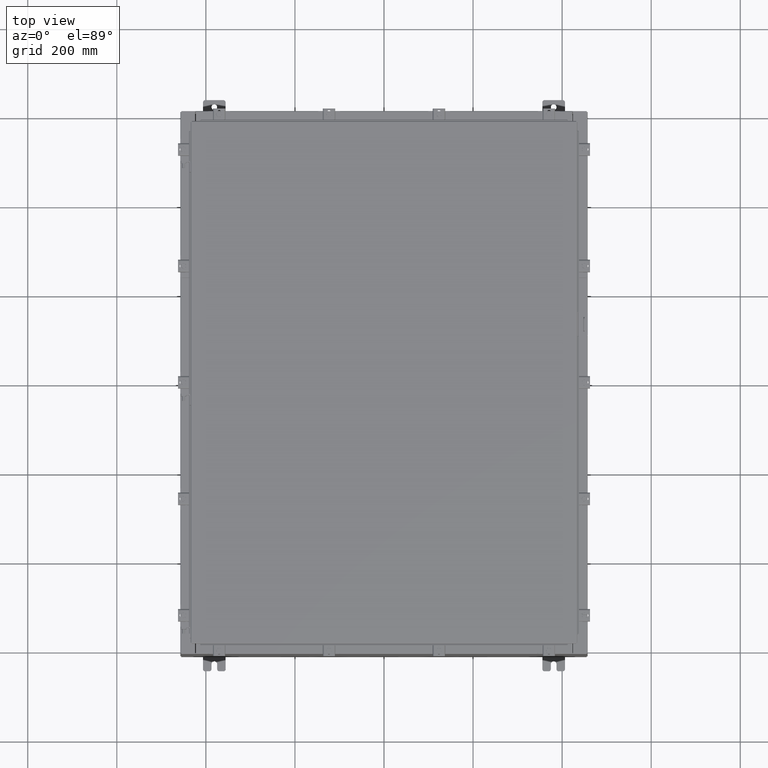
[diagram: clean part render]
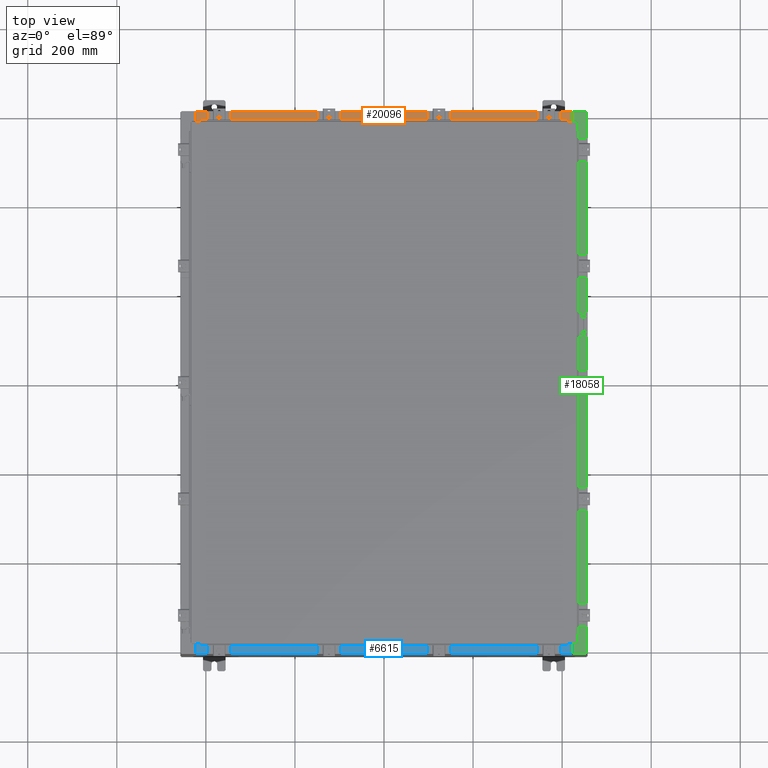
[diagram: same view with three faces highlighted in distinct colors, each labeled with its STEP entity id]
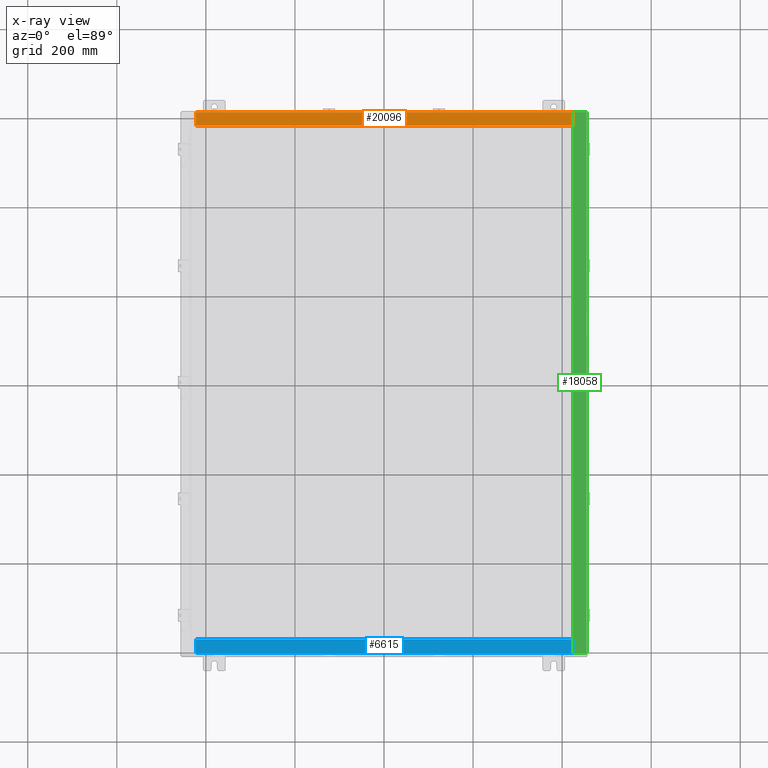
[diagram: x-ray of the same camera — body ghosted, the three highlighted faces saturated]
A machine part, top view with three faces highlighted in distinct colors.
The next image is the same camera in x-ray (body ghosted, the three faces saturated) — at least one of them is partly hidden behind the body in this view.
Their STEP definitions:

[orange] entity #20096 — the highlighted planar face has unit normal (0, 0, 1).
#458 = LINE ( 'NONE', #12809, #27114 ) ;
#644 = LINE ( 'NONE', #2367, #17464 ) ;
#1929 = LINE ( 'NONE', #2318, #17411 ) ;
#2318 = CARTESIAN_POINT ( 'NONE',  ( 5.292955487724510400E-016, -0.08770000000000026400, 8.000000000000001800 ) ) ;
#2367 = CARTESIAN_POINT ( 'NONE',  ( 16.63720000000000000, -1.300300000000001300, 8.000000000000003600 ) ) ;
#3096 = LINE ( 'NONE', #23403, #24827 ) ;
#4010 = VERTEX_POINT ( 'NONE', #16334 ) ;
#4365 = CARTESIAN_POINT ( 'NONE',  ( -16.63720000000000000, -0.08770000000000026400, 8.000000000000003600 ) ) ;
#5698 = EDGE_CURVE ( 'NONE', #20786, #4010, #458, .T. ) ;
#6601 = DIRECTION ( 'NONE',  ( -0.0000000000000000000, -1.000000000000000000, 3.566381192773190000E-015 ) ) ;
#8587 = CARTESIAN_POINT ( 'NONE',  ( 16.63720000000000400, -0.08770000000000026400, 7.999999999999999100 ) ) ;
#8812 = VERTEX_POINT ( 'NONE', #8587 ) ;
#11855 = CARTESIAN_POINT ( 'NONE',  ( 5.292955487724510400E-016, 3.059669752903974500E-014, 8.000000000000001800 ) ) ;
#11902 = EDGE_CURVE ( 'NONE', #8812, #20786, #644, .T. ) ;
#12359 = ORIENTED_EDGE ( 'NONE', *, *, #21218, .T. ) ;
#12423 = ORIENTED_EDGE ( 'NONE', *, *, #5698, .F. ) ;
#12809 = CARTESIAN_POINT ( 'NONE',  ( 16.63720000000000400, -1.287299999999999200, 8.000000000000003600 ) ) ;
#13185 = FACE_OUTER_BOUND ( 'NONE', #17645, .T. ) ;
#13868 = PLANE ( 'NONE',  #26930 ) ;
#13958 = DIRECTION ( 'NONE',  ( 0.0000000000000000000, -1.000000000000000000, 3.566381192773190000E-015 ) ) ;
#16100 = ORIENTED_EDGE ( 'NONE', *, *, #25964, .F. ) ;
#16334 = CARTESIAN_POINT ( 'NONE',  ( -16.63720000000000000, -1.287299999999999200, 8.000000000000007100 ) ) ;
#17411 = VECTOR ( 'NONE', #19170, 39.37007874015748100 ) ;
#17464 = VECTOR ( 'NONE', #6601, 39.37007874015748100 ) ;
#17645 = EDGE_LOOP ( 'NONE', ( #16100, #12423, #18645, #12359 ) ) ;
#18645 = ORIENTED_EDGE ( 'NONE', *, *, #11902, .F. ) ;
#18870 = CARTESIAN_POINT ( 'NONE',  ( 16.63720000000000000, -1.287299999999999200, 8.000000000000003600 ) ) ;
#19170 = DIRECTION ( 'NONE',  ( -1.000000000000000000, -6.568047492761434800E-017, 6.568047492761457000E-017 ) ) ;
#20096 = ADVANCED_FACE ( 'NONE', ( #13185 ), #13868, .T. ) ;
#20786 = VERTEX_POINT ( 'NONE', #18870 ) ;
#20856 = VERTEX_POINT ( 'NONE', #4365 ) ;
#21218 = EDGE_CURVE ( 'NONE', #8812, #20856, #1929, .T. ) ;
#23346 = DIRECTION ( 'NONE',  ( -1.000000000000000000, 0.0000000000000000000, 0.0000000000000000000 ) ) ;
#23403 = CARTESIAN_POINT ( 'NONE',  ( -16.63720000000000000, -0.07469999999999797600, 8.000000000000003600 ) ) ;
#24827 = VECTOR ( 'NONE', #25528, 39.37007874015748100 ) ;
#25528 = DIRECTION ( 'NONE',  ( -0.0000000000000000000, 1.000000000000000000, -3.566381192773190000E-015 ) ) ;
#25964 = EDGE_CURVE ( 'NONE', #4010, #20856, #3096, .T. ) ;
#26523 = DIRECTION ( 'NONE',  ( 6.568047492761433500E-017, 3.566381192773190000E-015, 1.000000000000000000 ) ) ;
#26930 = AXIS2_PLACEMENT_3D ( 'NONE', #11855, #26523, #13958 ) ;
#27114 = VECTOR ( 'NONE', #23346, 39.37007874015748100 ) ;

[blue] entity #6615 — the highlighted planar face has unit normal (-0, -0, 1).
#555 = CARTESIAN_POINT ( 'NONE',  ( 8.605321180042428600E-015, 2.622574073917692700E-014, 8.000000000000001800 ) ) ;
#640 = DIRECTION ( 'NONE',  ( 1.064881197090255600E-015, 3.767692204910442100E-015, 1.000000000000000000 ) ) ;
#2101 = VERTEX_POINT ( 'NONE', #26625 ) ;
#2125 = ORIENTED_EDGE ( 'NONE', *, *, #12703, .F. ) ;
#2246 = CARTESIAN_POINT ( 'NONE',  ( 8.519950930240421700E-015, -0.08770000000000026400, 8.000000000000001800 ) ) ;
#2924 = CARTESIAN_POINT ( 'NONE',  ( -16.63719999999998600, -1.287299999999999200, 7.999999999999987600 ) ) ;
#3403 = EDGE_CURVE ( 'NONE', #13151, #19745, #10383, .T. ) ;
#3962 = EDGE_CURVE ( 'NONE', #16736, #2101, #22171, .T. ) ;
#4148 = CARTESIAN_POINT ( 'NONE',  ( 16.63720000000001400, -1.287299999999999200, 8.000000000000017800 ) ) ;
#4183 = AXIS2_PLACEMENT_3D ( 'NONE', #555, #640, #15416 ) ;
#4719 = ORIENTED_EDGE ( 'NONE', *, *, #3962, .F. ) ;
#5371 = VECTOR ( 'NONE', #24291, 39.37007874015748100 ) ;
#5599 = CARTESIAN_POINT ( 'NONE',  ( 16.63720000000001400, -0.08770000000000026400, 8.000000000000014200 ) ) ;
#6068 = FACE_OUTER_BOUND ( 'NONE', #11036, .T. ) ;
#6615 = ADVANCED_FACE ( 'NONE', ( #6068 ), #11162, .T. ) ;
#8328 = DIRECTION ( 'NONE',  ( -1.000000000000000000, -3.225867722578232700E-016, -9.992007221626408900E-016 ) ) ;
#8331 = VECTOR ( 'NONE', #8328, 39.37007874015748100 ) ;
#9638 = CARTESIAN_POINT ( 'NONE',  ( -16.63719999999998600, -0.07470000000000234800, 7.999999999999983100 ) ) ;
#10383 = LINE ( 'NONE', #19794, #20895 ) ;
#10458 = LINE ( 'NONE', #2246, #20954 ) ;
#10482 = CARTESIAN_POINT ( 'NONE',  ( 16.63720000000001400, -1.287299999999999200, 8.000000000000017800 ) ) ;
#11036 = EDGE_LOOP ( 'NONE', ( #4719, #2125, #22190, #26485 ) ) ;
#11162 = PLANE ( 'NONE',  #4183 ) ;
#12703 = EDGE_CURVE ( 'NONE', #19745, #16736, #19491, .T. ) ;
#13151 = VERTEX_POINT ( 'NONE', #5599 ) ;
#14889 = DIRECTION ( 'NONE',  ( -1.000000000000000000, -3.882672471854376700E-016, -9.335202472350261400E-016 ) ) ;
#15416 = DIRECTION ( 'NONE',  ( -3.225867722578196200E-016, -1.000000000000000000, 3.767692204910442100E-015 ) ) ;
#16736 = VERTEX_POINT ( 'NONE', #2924 ) ;
#19491 = LINE ( 'NONE', #4148, #8331 ) ;
#19745 = VERTEX_POINT ( 'NONE', #10482 ) ;
#19794 = CARTESIAN_POINT ( 'NONE',  ( 16.63720000000001400, -1.300300000000001300, 8.000000000000017800 ) ) ;
#20895 = VECTOR ( 'NONE', #21923, 39.37007874015748100 ) ;
#20954 = VECTOR ( 'NONE', #14889, 39.37007874015748100 ) ;
#21923 = DIRECTION ( 'NONE',  ( -3.225867722578196700E-016, -1.000000000000000000, 3.767692204910442100E-015 ) ) ;
#22171 = LINE ( 'NONE', #9638, #5371 ) ;
#22190 = ORIENTED_EDGE ( 'NONE', *, *, #3403, .F. ) ;
#24291 = DIRECTION ( 'NONE',  ( 3.225867722578196700E-016, 1.000000000000000000, -3.767692204910442100E-015 ) ) ;
#24469 = EDGE_CURVE ( 'NONE', #13151, #2101, #10458, .T. ) ;
#26485 = ORIENTED_EDGE ( 'NONE', *, *, #24469, .T. ) ;
#26625 = CARTESIAN_POINT ( 'NONE',  ( -16.63719999999998600, -0.08770000000000026400, 7.999999999999983100 ) ) ;

[green] entity #18058 — the highlighted planar face has unit normal (-0, 0, -1).
#48 = LINE ( 'NONE', #21014, #19811 ) ;
#103 = CARTESIAN_POINT ( 'NONE',  ( 16.69970000000005000, 0.0000000000000000000, 15.92530000000000500 ) ) ;
#859 = AXIS2_PLACEMENT_3D ( 'NONE', #21605, #9029, #23691 ) ;
#1012 = CARTESIAN_POINT ( 'NONE',  ( 16.69970000000005000, 23.92529999999998200, 15.92530000000000500 ) ) ;
#1029 = CARTESIAN_POINT ( 'NONE',  ( 16.69970000000005000, 22.63109999999996800, 15.92530000000000500 ) ) ;
#1208 = DIRECTION ( 'NONE',  ( 1.000000000000000000, 0.0000000000000000000, 0.0000000000000000000 ) ) ;
#1354 = DIRECTION ( 'NONE',  ( -7.132762385546384700E-015, 0.0000000000000000000, -1.000000000000000000 ) ) ;
#1558 = VERTEX_POINT ( 'NONE', #16182 ) ;
#1637 = VECTOR ( 'NONE', #24687, 39.37007874015748100 ) ;
#2157 = DIRECTION ( 'NONE',  ( 3.161623214578966600E-031, -1.000000000000000000, -2.255110714221909800E-045 ) ) ;
#2520 = DIRECTION ( 'NONE',  ( -1.000000000000000000, 0.0000000000000000000, -4.340572780400098900E-014 ) ) ;
#3328 = VECTOR ( 'NONE', #13224, 39.37007874015748100 ) ;
#3846 = ORIENTED_EDGE ( 'NONE', *, *, #8190, .F. ) ;
#4122 = VECTOR ( 'NONE', #22644, 39.37007874015748100 ) ;
#4197 = LINE ( 'NONE', #15329, #21020 ) ;
#4427 = EDGE_CURVE ( 'NONE', #23540, #10455, #11640, .T. ) ;
#4740 = CARTESIAN_POINT ( 'NONE',  ( 16.71270000000005100, -22.59374999999998900, 15.92530000000000900 ) ) ;
#5275 = LINE ( 'NONE', #4740, #15856 ) ;
#5385 = ORIENTED_EDGE ( 'NONE', *, *, #4427, .T. ) ;
#5560 = CARTESIAN_POINT ( 'NONE',  ( 17.91230000000005200, -23.92529999999998900, 15.92530000000000000 ) ) ;
#5680 = VERTEX_POINT ( 'NONE', #14936 ) ;
#5759 = VERTEX_POINT ( 'NONE', #6611 ) ;
#5816 = VERTEX_POINT ( 'NONE', #15170 ) ;
#5976 = CIRCLE ( 'NONE', #12117, 0.01867499999999949400 ) ;
#6611 = CARTESIAN_POINT ( 'NONE',  ( 16.75005000000005100, 22.63109999999996800, 15.92530000000000500 ) ) ;
#6756 = ORIENTED_EDGE ( 'NONE', *, *, #25068, .F. ) ;
#6866 = DIRECTION ( 'NONE',  ( -0.0000000000000000000, 1.000000000000000000, -0.0000000000000000000 ) ) ;
#6905 = EDGE_CURVE ( 'NONE', #5816, #26318, #22503, .T. ) ;
#6934 = ORIENTED_EDGE ( 'NONE', *, *, #6905, .T. ) ;
#8190 = EDGE_CURVE ( 'NONE', #5759, #10455, #48, .T. ) ;
#8293 = CARTESIAN_POINT ( 'NONE',  ( 16.69970000000005000, -22.63109999999998600, 15.92530000000000500 ) ) ;
#9029 = DIRECTION ( 'NONE',  ( 7.132762385546384700E-015, 0.0000000000000000000, 1.000000000000000000 ) ) ;
#9399 = EDGE_CURVE ( 'NONE', #1558, #11239, #26716, .T. ) ;
#9876 = DIRECTION ( 'NONE',  ( 1.000000000000000000, 8.144358738339254500E-032, -7.132762385546384700E-015 ) ) ;
#10455 = VERTEX_POINT ( 'NONE', #1029 ) ;
#10625 = ORIENTED_EDGE ( 'NONE', *, *, #21371, .T. ) ;
#10632 = EDGE_CURVE ( 'NONE', #5680, #26318, #20125, .T. ) ;
#10898 = CARTESIAN_POINT ( 'NONE',  ( 16.75005000000005100, -22.63109999999998600, 15.92530000000000500 ) ) ;
#11239 = VERTEX_POINT ( 'NONE', #10898 ) ;
#11640 = LINE ( 'NONE', #103, #23452 ) ;
#11829 = ORIENTED_EDGE ( 'NONE', *, *, #17158, .F. ) ;
#11992 = CARTESIAN_POINT ( 'NONE',  ( 1.138497651359581700E-013, -23.92529999999998900, 15.92530000000012600 ) ) ;
#12117 = AXIS2_PLACEMENT_3D ( 'NONE', #26388, #13844, #1208 ) ;
#12243 = VERTEX_POINT ( 'NONE', #15531 ) ;
#13083 = EDGE_CURVE ( 'NONE', #11239, #23785, #5976, .T. ) ;
#13101 = EDGE_CURVE ( 'NONE', #1558, #5816, #22111, .T. ) ;
#13224 = DIRECTION ( 'NONE',  ( -0.0000000000000000000, -1.000000000000000000, -0.0000000000000000000 ) ) ;
#13844 = DIRECTION ( 'NONE',  ( 7.132762385546384700E-015, 0.0000000000000000000, 1.000000000000000000 ) ) ;
#14008 = CARTESIAN_POINT ( 'NONE',  ( 1.138497651359581700E-013, 0.0000000000000000000, 15.92530000000012600 ) ) ;
#14741 = EDGE_CURVE ( 'NONE', #19291, #12243, #22684, .T. ) ;
#14861 = AXIS2_PLACEMENT_3D ( 'NONE', #14008, #1354, #16114 ) ;
#14936 = CARTESIAN_POINT ( 'NONE',  ( 17.91230000000005200, 23.92529999999998600, 15.92530000000000000 ) ) ;
#15170 = CARTESIAN_POINT ( 'NONE',  ( 16.69970000000005000, -23.92529999999998900, 15.92530000000000500 ) ) ;
#15329 = CARTESIAN_POINT ( 'NONE',  ( 1.138497651359581700E-013, 23.92529999999998600, 15.92530000000012600 ) ) ;
#15371 = LINE ( 'NONE', #18539, #4122 ) ;
#15531 = CARTESIAN_POINT ( 'NONE',  ( 16.75005000000005100, 22.59374999999997200, 15.92530000000000500 ) ) ;
#15777 = ORIENTED_EDGE ( 'NONE', *, *, #19440, .F. ) ;
#15856 = VECTOR ( 'NONE', #6866, 39.37007874015748100 ) ;
#16076 = ORIENTED_EDGE ( 'NONE', *, *, #14741, .F. ) ;
#16114 = DIRECTION ( 'NONE',  ( -1.000000000000000000, 0.0000000000000000000, 7.132762385546384700E-015 ) ) ;
#16147 = CARTESIAN_POINT ( 'NONE',  ( 16.71270000000005100, -22.59374999999998900, 15.92530000000000900 ) ) ;
#16182 = CARTESIAN_POINT ( 'NONE',  ( 16.69970000000005000, -22.63109999999998600, 15.92530000000000500 ) ) ;
#16284 = VECTOR ( 'NONE', #9876, 39.37007874015748100 ) ;
#17158 = EDGE_CURVE ( 'NONE', #12243, #5759, #21528, .T. ) ;
#17184 = VECTOR ( 'NONE', #22272, 39.37007874015748100 ) ;
#17298 = EDGE_LOOP ( 'NONE', ( #23209, #20378, #6934, #23357, #10625, #5385, #3846, #11829, #16076, #15777, #6756, #21544 ) ) ;
#17425 = DIRECTION ( 'NONE',  ( -1.000000000000000000, 4.379057701015053300E-047, 7.132762385546384700E-015 ) ) ;
#18058 = ADVANCED_FACE ( 'NONE', ( #20499 ), #24340, .F. ) ;
#18077 = CARTESIAN_POINT ( 'NONE',  ( 16.69970000000005000, 0.0000000000000000000, 15.92530000000000500 ) ) ;
#18539 = CARTESIAN_POINT ( 'NONE',  ( 16.75005000000005100, -22.59374999999998900, 15.92530000000000900 ) ) ;
#19291 = VERTEX_POINT ( 'NONE', #25258 ) ;
#19440 = EDGE_CURVE ( 'NONE', #24957, #19291, #5275, .T. ) ;
#19811 = VECTOR ( 'NONE', #2520, 39.37007874015748100 ) ;
#20125 = LINE ( 'NONE', #25793, #3328 ) ;
#20378 = ORIENTED_EDGE ( 'NONE', *, *, #13101, .T. ) ;
#20468 = CARTESIAN_POINT ( 'NONE',  ( 16.71270000000005100, 22.59374999999997200, 15.92530000000000900 ) ) ;
#20499 = FACE_OUTER_BOUND ( 'NONE', #17298, .T. ) ;
#21014 = CARTESIAN_POINT ( 'NONE',  ( 16.75005000000005100, 22.63109999999996800, 15.92530000000000900 ) ) ;
#21020 = VECTOR ( 'NONE', #17425, 39.37007874015748100 ) ;
#21371 = EDGE_CURVE ( 'NONE', #5680, #23540, #4197, .T. ) ;
#21528 = CIRCLE ( 'NONE', #859, 0.01867499999999949400 ) ;
#21544 = ORIENTED_EDGE ( 'NONE', *, *, #13083, .F. ) ;
#21605 = CARTESIAN_POINT ( 'NONE',  ( 16.75005000000005100, 22.61242499999997000, 15.92530000000000900 ) ) ;
#21781 = VECTOR ( 'NONE', #22992, 39.37007874015748100 ) ;
#22111 = LINE ( 'NONE', #18077, #17184 ) ;
#22272 = DIRECTION ( 'NONE',  ( 3.161623214578966600E-031, -1.000000000000000000, -2.255110714221909800E-045 ) ) ;
#22503 = LINE ( 'NONE', #11992, #16284 ) ;
#22644 = DIRECTION ( 'NONE',  ( -1.000000000000000000, 0.0000000000000000000, 0.0000000000000000000 ) ) ;
#22684 = LINE ( 'NONE', #20468, #1637 ) ;
#22992 = DIRECTION ( 'NONE',  ( 1.000000000000000000, 0.0000000000000000000, 4.340572780400098900E-014 ) ) ;
#23209 = ORIENTED_EDGE ( 'NONE', *, *, #9399, .F. ) ;
#23357 = ORIENTED_EDGE ( 'NONE', *, *, #10632, .F. ) ;
#23452 = VECTOR ( 'NONE', #2157, 39.37007874015748100 ) ;
#23540 = VERTEX_POINT ( 'NONE', #1012 ) ;
#23691 = DIRECTION ( 'NONE',  ( 1.000000000000000000, 0.0000000000000000000, 0.0000000000000000000 ) ) ;
#23785 = VERTEX_POINT ( 'NONE', #24932 ) ;
#24340 = PLANE ( 'NONE',  #14861 ) ;
#24687 = DIRECTION ( 'NONE',  ( 1.000000000000000000, 0.0000000000000000000, 0.0000000000000000000 ) ) ;
#24932 = CARTESIAN_POINT ( 'NONE',  ( 16.75005000000005100, -22.59374999999998900, 15.92530000000000500 ) ) ;
#24957 = VERTEX_POINT ( 'NONE', #16147 ) ;
#25068 = EDGE_CURVE ( 'NONE', #23785, #24957, #15371, .T. ) ;
#25258 = CARTESIAN_POINT ( 'NONE',  ( 16.71270000000005100, 22.59374999999997200, 15.92530000000000900 ) ) ;
#25793 = CARTESIAN_POINT ( 'NONE',  ( 17.91230000000005200, -23.92529999999998900, 15.92530000000000000 ) ) ;
#26318 = VERTEX_POINT ( 'NONE', #5560 ) ;
#26388 = CARTESIAN_POINT ( 'NONE',  ( 16.75005000000005100, -22.61242499999998800, 15.92530000000000900 ) ) ;
#26716 = LINE ( 'NONE', #8293, #21781 ) ;